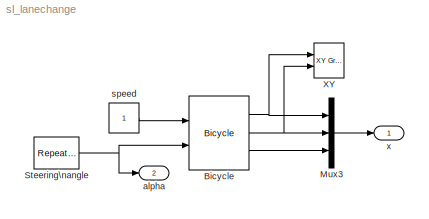
MODEL sl_lanechange
KIND model
BLOCK [Reference] Bicycle  REF=roblocks/Dynamics/Bicycle  (lib defined in mdl_2a292b13c81b, mdl_69400f8cfe22, +12 more)
  FunctionWithSeparateData = off
  GeneratePreprocessorConditionals = off
  L = 1
  Ports = [2, 3]
  RTWMemSecDataConstants = Inherit from model
  RTWMemSecDataInternal = Inherit from model
  RTWMemSecDataParameters = Inherit from model
  RTWMemSecFuncExecute = Inherit from model
  RTWMemSecFuncInitTerm = Inherit from model
  SID = 21
  ShowPortLabels = FromPortIcon
  SourceBlock = roblocks/Dynamics/Bicycle
  SystemSampleTime = -1
  accel = 1
  alim = 2
  handbrake = 0
  vlim = 1
  x0 = [0, 0, 0]
BLOCK [Mux] Mux3
  DisplayOption = bar
  Inputs = 3
  Ports = [3, 1]
  SID = 15
BLOCK [Reference] Steering\nangle  REF=simulink/Sources/Repeating\nSequence\nStair
  ConRadixGroup = Best Precision: Vector-wise
  FunctionWithSeparateData = off
  GeneratePreprocessorConditionals = off
  LockScale = off
  OutDataType = double
  OutDataTypeStr = double
  OutMax = []
  OutMin = []
  OutScaling = 2^-12
  OutValues = [0 0 0 0.5 0 -0.5 0 0 0 0]
  OutputDataTypeScalingMode = Specify via dialog
  Ports = [0, 1]
  RTWMemSecDataConstants = Inherit from model
  RTWMemSecDataInternal = Inherit from model
  RTWMemSecDataParameters = Inherit from model
  RTWMemSecFuncExecute = Inherit from model
  RTWMemSecFuncInitTerm = Inherit from model
  SID = 16
  ShowPortLabels = FromPortIcon
  SourceBlock = simulink/Sources/Repeating\nSequence\nStair
  SourceType = Repeating Sequence Stair
  SystemSampleTime = -1
  tsamp = 1
BLOCK [Reference] XY  REF=simulink/Sinks/XY Graph
  FunctionWithSeparateData = off
  GeneratePreprocessorConditionals = off
  Ports = [2]
  RTWMemSecDataConstants = Inherit from model
  RTWMemSecDataInternal = Inherit from model
  RTWMemSecDataParameters = Inherit from model
  RTWMemSecFuncExecute = Inherit from model
  RTWMemSecFuncInitTerm = Inherit from model
  SID = 17
  ShowPortLabels = FromPortIcon
  SourceBlock = simulink/Sinks/XY Graph
  SourceType = XY scope.
  SystemSampleTime = -1
  st = -1
  xmax = 10
  xmin = 0
  ymax = 10
  ymin = 0
BLOCK [Outport] alpha
  IconDisplay = Port number
  Port = 2
  SID = 20
BLOCK [Constant] speed
  SID = 18
  SampleTime = 0.02
  VectorParams1D = off
BLOCK [Outport] x
  IconDisplay = Port number
  SID = 19
NET Bicycle:1 -> Mux3:1, XY:1
NET Bicycle:2 -> Mux3:2, XY:2
LINE Bicycle:3 -> Mux3:3
LINE Mux3:1 -> x:1
NET Steering\nangle:1 -> Bicycle:2, alpha:1
LINE speed:1 -> Bicycle:1
note: NET lines group one-source signal fan-out (src -> all destinations, sorted); 1:1 wires keep LINE
